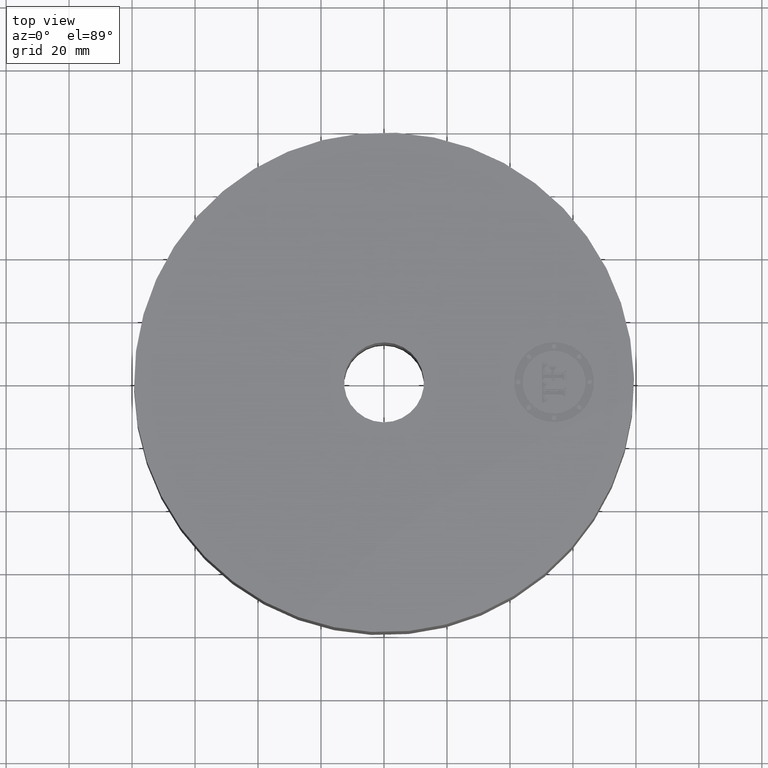
[diagram: clean part render]
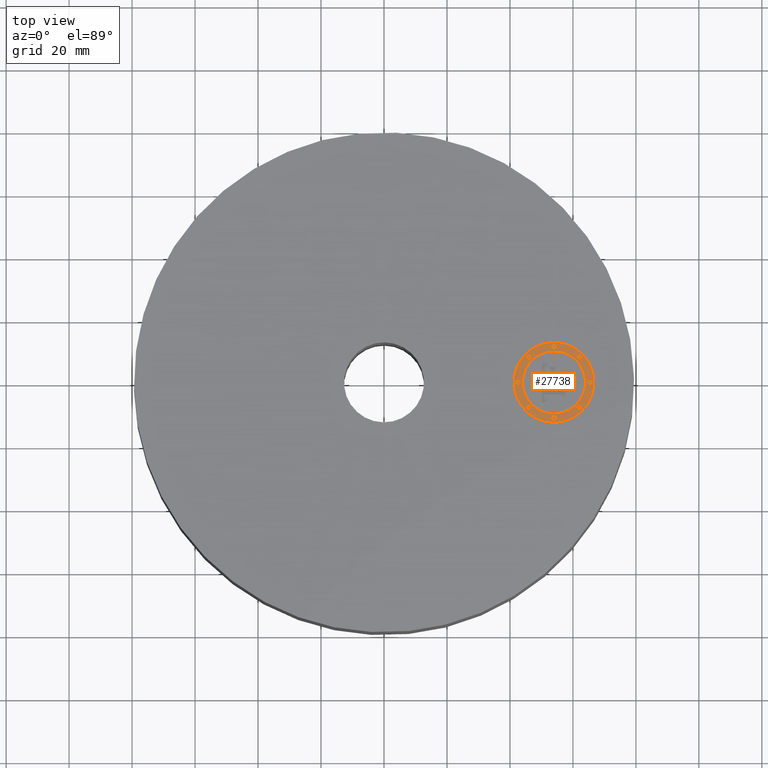
[diagram: same view with one face highlighted and labeled with its STEP entity id]
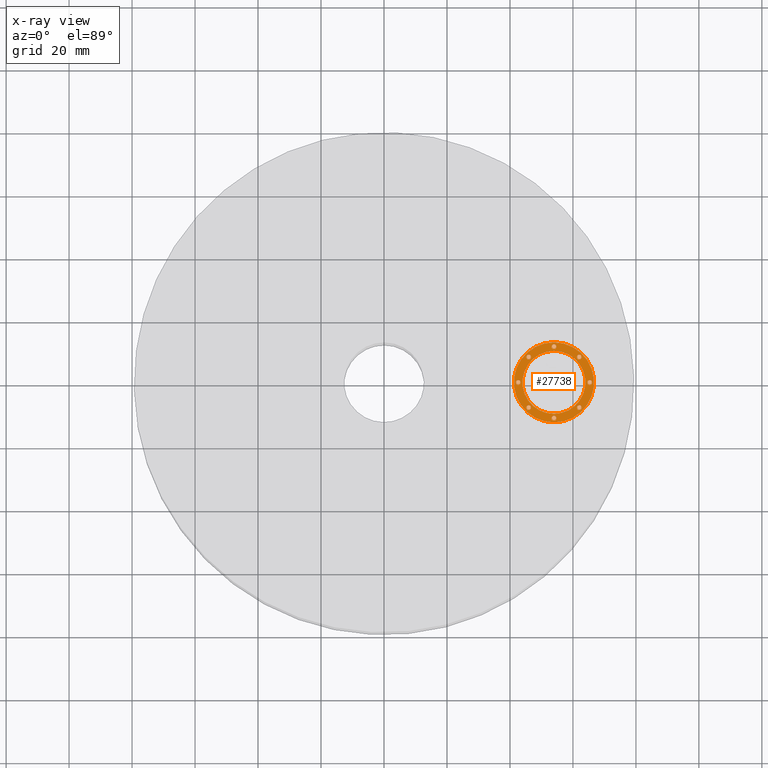
[diagram: x-ray of the same camera — body ghosted, the highlighted face saturated]
A machine part, top view. The second image highlights one B-rep face of the part: STEP entity #27738.
The next image is the same camera in x-ray: the body ghosted, the highlighted face saturated — about 0% of this face is hidden behind the body in this view.
In plain terms, the highlighted planar face has unit normal (0, 0, 1).
Its self-contained STEP definition (entity closure, byte-faithful):
#16385=AXIS2_PLACEMENT_3D('Plane Axis2P3D',#16382,#16383,#16384) ;
#27536=AXIS2_PLACEMENT_3D('Circle Axis2P3D',#27534,#27535,$) ;
#27555=AXIS2_PLACEMENT_3D('Circle Axis2P3D',#27553,#27554,$) ;
#27578=AXIS2_PLACEMENT_3D('Circle Axis2P3D',#27576,#27577,$) ;
#27587=AXIS2_PLACEMENT_3D('Circle Axis2P3D',#27585,#27586,$) ;
#27596=AXIS2_PLACEMENT_3D('Circle Axis2P3D',#27594,#27595,$) ;
#27605=AXIS2_PLACEMENT_3D('Circle Axis2P3D',#27603,#27604,$) ;
#27614=AXIS2_PLACEMENT_3D('Circle Axis2P3D',#27612,#27613,$) ;
#27623=AXIS2_PLACEMENT_3D('Circle Axis2P3D',#27621,#27622,$) ;
#27632=AXIS2_PLACEMENT_3D('Circle Axis2P3D',#27630,#27631,$) ;
#27641=AXIS2_PLACEMENT_3D('Circle Axis2P3D',#27639,#27640,$) ;
#27650=AXIS2_PLACEMENT_3D('Circle Axis2P3D',#27648,#27649,$) ;
#27659=AXIS2_PLACEMENT_3D('Circle Axis2P3D',#27657,#27658,$) ;
#27668=AXIS2_PLACEMENT_3D('Circle Axis2P3D',#27666,#27667,$) ;
#27677=AXIS2_PLACEMENT_3D('Circle Axis2P3D',#27675,#27676,$) ;
#27686=AXIS2_PLACEMENT_3D('Circle Axis2P3D',#27684,#27685,$) ;
#27695=AXIS2_PLACEMENT_3D('Circle Axis2P3D',#27693,#27694,$) ;
#27704=AXIS2_PLACEMENT_3D('Circle Axis2P3D',#27702,#27703,$) ;
#27713=AXIS2_PLACEMENT_3D('Circle Axis2P3D',#27711,#27712,$) ;
#27722=AXIS2_PLACEMENT_3D('Circle Axis2P3D',#27720,#27721,$) ;
#27731=AXIS2_PLACEMENT_3D('Circle Axis2P3D',#27729,#27730,$) ;
#16382=CARTESIAN_POINT('Axis2P3D Location',(0.,0.,2.10500000001)) ;
#27524=CARTESIAN_POINT('Vertex',(2.12500000001,0.499999995002,2.10500000001)) ;
#27531=CARTESIAN_POINT('Vertex',(2.12500000001,-0.499999995002,2.10500000001)) ;
#27534=CARTESIAN_POINT('Axis2P3D Location',(2.12500000001,0.,2.10500000001)) ;
#27553=CARTESIAN_POINT('Axis2P3D Location',(2.12500000001,0.,2.10500000001)) ;
#27576=CARTESIAN_POINT('Axis2P3D Location',(2.12500000001,0.,2.10500000001)) ;
#27580=CARTESIAN_POINT('Vertex',(2.12500000001,-0.393939390002,2.10500000001)) ;
#27582=CARTESIAN_POINT('Vertex',(2.12500000001,0.393939390002,2.10500000001)) ;
#27585=CARTESIAN_POINT('Axis2P3D Location',(2.12500000001,0.,2.10500000001)) ;
#27594=CARTESIAN_POINT('Axis2P3D Location',(1.67803030751,-1.27155105343E-015,2.10500000001)) ;
#27598=CARTESIAN_POINT('Vertex',(1.67803030751,-0.0303030300001,2.10500000001)) ;
#27600=CARTESIAN_POINT('Vertex',(1.67803030751,0.0303030300001,2.10500000001)) ;
#27603=CARTESIAN_POINT('Axis2P3D Location',(1.67803030751,-1.27155105343E-015,2.10500000001)) ;
#27612=CARTESIAN_POINT('Axis2P3D Location',(2.12500000001,0.446969692502,2.10500000001)) ;
#27616=CARTESIAN_POINT('Vertex',(2.12500000001,0.416666662502,2.10500000001)) ;
#27618=CARTESIAN_POINT('Vertex',(2.12500000001,0.477272722502,2.10500000001)) ;
#27621=CARTESIAN_POINT('Axis2P3D Location',(2.12500000001,0.446969692502,2.10500000001)) ;
#27630=CARTESIAN_POINT('Axis2P3D Location',(1.80894469946,0.316055300553,2.10500000001)) ;
#27634=CARTESIAN_POINT('Vertex',(1.80894469946,0.285752270553,2.10500000001)) ;
#27636=CARTESIAN_POINT('Vertex',(1.80894469946,0.346358330553,2.10500000001)) ;
#27639=CARTESIAN_POINT('Axis2P3D Location',(1.80894469946,0.316055300553,2.10500000001)) ;
#27648=CARTESIAN_POINT('Axis2P3D Location',(2.57196969251,1.17265263816E-014,2.10500000001)) ;
#27652=CARTESIAN_POINT('Vertex',(2.57196969251,-0.0303030300001,2.10500000001)) ;
#27654=CARTESIAN_POINT('Vertex',(2.57196969251,0.0303030300001,2.10500000001)) ;
#27657=CARTESIAN_POINT('Axis2P3D Location',(2.57196969251,1.17265263816E-014,2.10500000001)) ;
#27666=CARTESIAN_POINT('Axis2P3D Location',(2.44105530056,0.316055300553,2.10500000001)) ;
#27670=CARTESIAN_POINT('Vertex',(2.44105530056,0.285752270553,2.10500000001)) ;
#27672=CARTESIAN_POINT('Vertex',(2.44105530056,0.346358330553,2.10500000001)) ;
#27675=CARTESIAN_POINT('Axis2P3D Location',(2.44105530056,0.316055300553,2.10500000001)) ;
#27684=CARTESIAN_POINT('Axis2P3D Location',(2.12500000001,-0.446969692502,2.10500000001)) ;
#27688=CARTESIAN_POINT('Vertex',(2.12500000001,-0.416666662502,2.10500000001)) ;
#27690=CARTESIAN_POINT('Vertex',(2.12500000001,-0.477272722502,2.10500000001)) ;
#27693=CARTESIAN_POINT('Axis2P3D Location',(2.12500000001,-0.446969692502,2.10500000001)) ;
#27702=CARTESIAN_POINT('Axis2P3D Location',(1.80894469946,-0.316055300553,2.10500000001)) ;
#27706=CARTESIAN_POINT('Vertex',(1.80894469946,-0.285752270553,2.10500000001)) ;
#27708=CARTESIAN_POINT('Vertex',(1.80894469946,-0.346358330553,2.10500000001)) ;
#27711=CARTESIAN_POINT('Axis2P3D Location',(1.80894469946,-0.316055300553,2.10500000001)) ;
#27720=CARTESIAN_POINT('Axis2P3D Location',(2.44105530056,-0.316055300553,2.10500000001)) ;
#27724=CARTESIAN_POINT('Vertex',(2.44105530056,-0.285752270553,2.10500000001)) ;
#27726=CARTESIAN_POINT('Vertex',(2.44105530056,-0.346358330553,2.10500000001)) ;
#27729=CARTESIAN_POINT('Axis2P3D Location',(2.44105530056,-0.316055300553,2.10500000001)) ;
#16383=DIRECTION('Axis2P3D Direction',(0.,0.,0.0393700787402)) ;
#16384=DIRECTION('Axis2P3D XDirection',(0.0393700787402,0.,0.)) ;
#27535=DIRECTION('Axis2P3D Direction',(0.,0.,0.0393700787402)) ;
#27554=DIRECTION('Axis2P3D Direction',(0.,0.,0.0393700787402)) ;
#27577=DIRECTION('Axis2P3D Direction',(0.,0.,0.0393700787402)) ;
#27586=DIRECTION('Axis2P3D Direction',(0.,0.,0.0393700787402)) ;
#27595=DIRECTION('Axis2P3D Direction',(0.,0.,0.0393700787402)) ;
#27604=DIRECTION('Axis2P3D Direction',(0.,0.,0.0393700787402)) ;
#27613=DIRECTION('Axis2P3D Direction',(0.,0.,0.0393700787402)) ;
#27622=DIRECTION('Axis2P3D Direction',(0.,0.,0.0393700787402)) ;
#27631=DIRECTION('Axis2P3D Direction',(0.,0.,0.0393700787402)) ;
#27640=DIRECTION('Axis2P3D Direction',(0.,0.,0.0393700787402)) ;
#27649=DIRECTION('Axis2P3D Direction',(0.,0.,0.0393700787402)) ;
#27658=DIRECTION('Axis2P3D Direction',(0.,0.,0.0393700787402)) ;
#27667=DIRECTION('Axis2P3D Direction',(0.,0.,0.0393700787402)) ;
#27676=DIRECTION('Axis2P3D Direction',(0.,0.,0.0393700787402)) ;
#27685=DIRECTION('Axis2P3D Direction',(0.,0.,0.0393700787402)) ;
#27694=DIRECTION('Axis2P3D Direction',(0.,0.,0.0393700787402)) ;
#27703=DIRECTION('Axis2P3D Direction',(0.,0.,0.0393700787402)) ;
#27712=DIRECTION('Axis2P3D Direction',(0.,0.,0.0393700787402)) ;
#27721=DIRECTION('Axis2P3D Direction',(0.,0.,0.0393700787402)) ;
#27730=DIRECTION('Axis2P3D Direction',(0.,0.,0.0393700787402)) ;
#27573=ORIENTED_EDGE('',*,*,#27538,.T.) ;
#27574=ORIENTED_EDGE('',*,*,#27557,.T.) ;
#27591=ORIENTED_EDGE('',*,*,#27584,.F.) ;
#27592=ORIENTED_EDGE('',*,*,#27589,.F.) ;
#27609=ORIENTED_EDGE('',*,*,#27602,.F.) ;
#27610=ORIENTED_EDGE('',*,*,#27607,.F.) ;
#27627=ORIENTED_EDGE('',*,*,#27620,.F.) ;
#27628=ORIENTED_EDGE('',*,*,#27625,.F.) ;
#27645=ORIENTED_EDGE('',*,*,#27638,.F.) ;
#27646=ORIENTED_EDGE('',*,*,#27643,.F.) ;
#27663=ORIENTED_EDGE('',*,*,#27656,.F.) ;
#27664=ORIENTED_EDGE('',*,*,#27661,.F.) ;
#27681=ORIENTED_EDGE('',*,*,#27674,.F.) ;
#27682=ORIENTED_EDGE('',*,*,#27679,.F.) ;
#27699=ORIENTED_EDGE('',*,*,#27692,.F.) ;
#27700=ORIENTED_EDGE('',*,*,#27697,.F.) ;
#27717=ORIENTED_EDGE('',*,*,#27710,.F.) ;
#27718=ORIENTED_EDGE('',*,*,#27715,.F.) ;
#27735=ORIENTED_EDGE('',*,*,#27728,.F.) ;
#27736=ORIENTED_EDGE('',*,*,#27733,.F.) ;
#27593=FACE_BOUND('',#27590,.T.) ;
#27611=FACE_BOUND('',#27608,.T.) ;
#27629=FACE_BOUND('',#27626,.T.) ;
#27647=FACE_BOUND('',#27644,.T.) ;
#27665=FACE_BOUND('',#27662,.T.) ;
#27683=FACE_BOUND('',#27680,.T.) ;
#27701=FACE_BOUND('',#27698,.T.) ;
#27719=FACE_BOUND('',#27716,.T.) ;
#27737=FACE_BOUND('',#27734,.T.) ;
#27738=ADVANCED_FACE('PartBody',(#27575,#27593,#27611,#27629,#27647,#27665,#27683,#27701,#27719,#27737),#16386,.T.) ;
#27537=CIRCLE('generated circle',#27536,0.499999995002) ;
#27556=CIRCLE('generated circle',#27555,0.499999995002) ;
#27579=CIRCLE('generated circle',#27578,0.393939390002) ;
#27588=CIRCLE('generated circle',#27587,0.393939390002) ;
#27597=CIRCLE('generated circle',#27596,0.0303030300001) ;
#27606=CIRCLE('generated circle',#27605,0.0303030300001) ;
#27615=CIRCLE('generated circle',#27614,0.0303030300001) ;
#27624=CIRCLE('generated circle',#27623,0.0303030300001) ;
#27633=CIRCLE('generated circle',#27632,0.0303030300001) ;
#27642=CIRCLE('generated circle',#27641,0.0303030300001) ;
#27651=CIRCLE('generated circle',#27650,0.0303030300001) ;
#27660=CIRCLE('generated circle',#27659,0.0303030300001) ;
#27669=CIRCLE('generated circle',#27668,0.0303030300001) ;
#27678=CIRCLE('generated circle',#27677,0.0303030300001) ;
#27687=CIRCLE('generated circle',#27686,0.0303030300001) ;
#27696=CIRCLE('generated circle',#27695,0.0303030300001) ;
#27705=CIRCLE('generated circle',#27704,0.0303030300001) ;
#27714=CIRCLE('generated circle',#27713,0.0303030300001) ;
#27723=CIRCLE('generated circle',#27722,0.0303030300001) ;
#27732=CIRCLE('generated circle',#27731,0.0303030300001) ;
#27538=EDGE_CURVE('',#27525,#27532,#27537,.T.) ;
#27557=EDGE_CURVE('',#27532,#27525,#27556,.T.) ;
#27584=EDGE_CURVE('',#27581,#27583,#27579,.T.) ;
#27589=EDGE_CURVE('',#27583,#27581,#27588,.T.) ;
#27602=EDGE_CURVE('',#27599,#27601,#27597,.T.) ;
#27607=EDGE_CURVE('',#27601,#27599,#27606,.T.) ;
#27620=EDGE_CURVE('',#27617,#27619,#27615,.T.) ;
#27625=EDGE_CURVE('',#27619,#27617,#27624,.T.) ;
#27638=EDGE_CURVE('',#27635,#27637,#27633,.T.) ;
#27643=EDGE_CURVE('',#27637,#27635,#27642,.T.) ;
#27656=EDGE_CURVE('',#27653,#27655,#27651,.T.) ;
#27661=EDGE_CURVE('',#27655,#27653,#27660,.T.) ;
#27674=EDGE_CURVE('',#27671,#27673,#27669,.T.) ;
#27679=EDGE_CURVE('',#27673,#27671,#27678,.T.) ;
#27692=EDGE_CURVE('',#27689,#27691,#27687,.T.) ;
#27697=EDGE_CURVE('',#27691,#27689,#27696,.T.) ;
#27710=EDGE_CURVE('',#27707,#27709,#27705,.T.) ;
#27715=EDGE_CURVE('',#27709,#27707,#27714,.T.) ;
#27728=EDGE_CURVE('',#27725,#27727,#27723,.T.) ;
#27733=EDGE_CURVE('',#27727,#27725,#27732,.T.) ;
#27572=EDGE_LOOP('',(#27573,#27574)) ;
#27590=EDGE_LOOP('',(#27591,#27592)) ;
#27608=EDGE_LOOP('',(#27609,#27610)) ;
#27626=EDGE_LOOP('',(#27627,#27628)) ;
#27644=EDGE_LOOP('',(#27645,#27646)) ;
#27662=EDGE_LOOP('',(#27663,#27664)) ;
#27680=EDGE_LOOP('',(#27681,#27682)) ;
#27698=EDGE_LOOP('',(#27699,#27700)) ;
#27716=EDGE_LOOP('',(#27717,#27718)) ;
#27734=EDGE_LOOP('',(#27735,#27736)) ;
#27575=FACE_OUTER_BOUND('',#27572,.T.) ;
#16386=PLANE('',#16385) ;
#27525=VERTEX_POINT('',#27524) ;
#27532=VERTEX_POINT('',#27531) ;
#27581=VERTEX_POINT('',#27580) ;
#27583=VERTEX_POINT('',#27582) ;
#27599=VERTEX_POINT('',#27598) ;
#27601=VERTEX_POINT('',#27600) ;
#27617=VERTEX_POINT('',#27616) ;
#27619=VERTEX_POINT('',#27618) ;
#27635=VERTEX_POINT('',#27634) ;
#27637=VERTEX_POINT('',#27636) ;
#27653=VERTEX_POINT('',#27652) ;
#27655=VERTEX_POINT('',#27654) ;
#27671=VERTEX_POINT('',#27670) ;
#27673=VERTEX_POINT('',#27672) ;
#27689=VERTEX_POINT('',#27688) ;
#27691=VERTEX_POINT('',#27690) ;
#27707=VERTEX_POINT('',#27706) ;
#27709=VERTEX_POINT('',#27708) ;
#27725=VERTEX_POINT('',#27724) ;
#27727=VERTEX_POINT('',#27726) ;